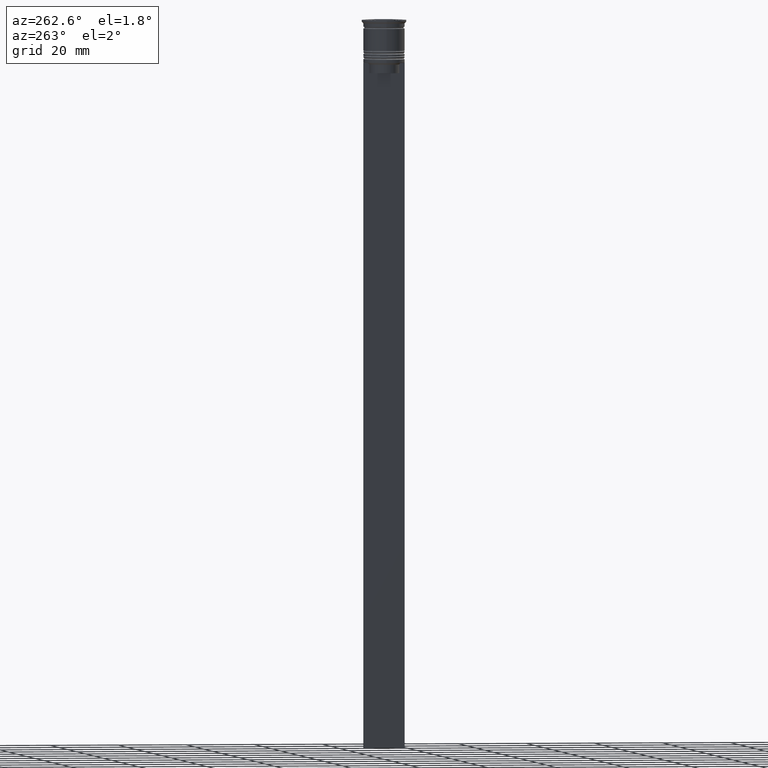
[diagram: clean part render]
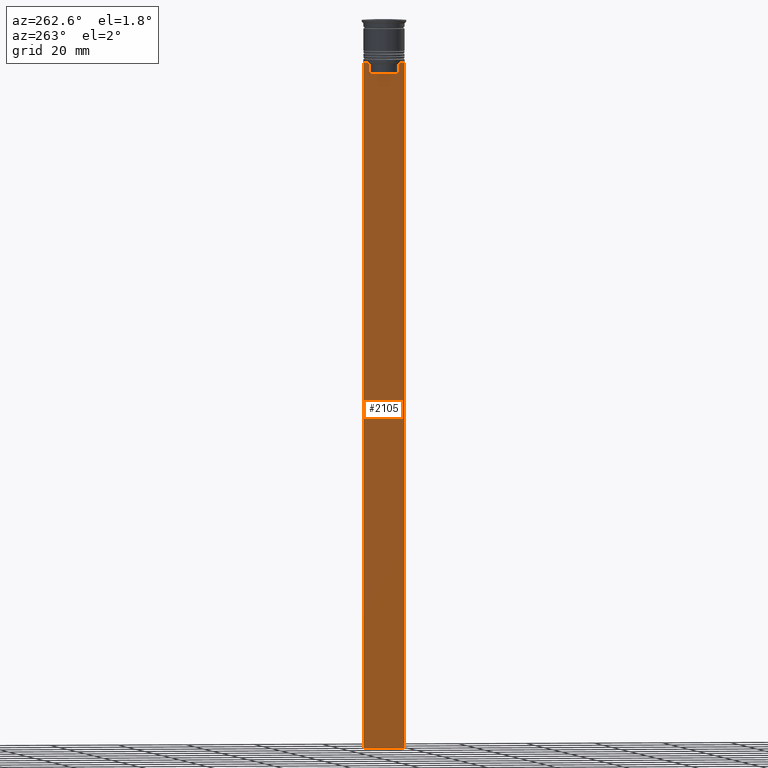
[diagram: same view with one face highlighted and labeled with its STEP entity id]
A machine part, auxiliary view. The second image highlights one B-rep face of the part: STEP entity #2105.
In plain terms, the highlighted planar face has unit normal (-1, 0, 0).
Its self-contained STEP definition (entity closure, byte-faithful):
#6 = ORIENTED_EDGE ( 'NONE', *, *, #308, .F. ) ;
#7 = VECTOR ( 'NONE', #2471, 1000.000000000000000 ) ;
#54 = LINE ( 'NONE', #845, #381 ) ;
#61 = CARTESIAN_POINT ( 'NONE',  ( -0.4999999999999997780, -4.706831372970964544, -12.66671687695981596 ) ) ;
#71 = VERTEX_POINT ( 'NONE', #866 ) ;
#79 = EDGE_CURVE ( 'NONE', #761, #841, #1633, .T. ) ;
#100 = EDGE_CURVE ( 'NONE', #1783, #841, #1753, .T. ) ;
#176 = VECTOR ( 'NONE', #678, 1000.000000000000000 ) ;
#190 = CARTESIAN_POINT ( 'NONE',  ( -0.4999999999999997780, -4.371498598878878816, -13.00000000000000178 ) ) ;
#233 = EDGE_CURVE ( 'NONE', #1739, #1756, #54, .T. ) ;
#252 = DIRECTION ( 'NONE',  ( 0.000000000000000000, 0.000000000000000000, -1.000000000000000000 ) ) ;
#283 = DIRECTION ( 'NONE',  ( 0.000000000000000000, -1.000000000000000000, 0.000000000000000000 ) ) ;
#285 = LINE ( 'NONE', #1643, #772 ) ;
#308 = EDGE_CURVE ( 'NONE', #780, #1309, #1797, .T. ) ;
#340 = VECTOR ( 'NONE', #1341, 1000.000000000000000 ) ;
#375 = CARTESIAN_POINT ( 'NONE',  ( -0.4999999999999997780, -6.000000000000000000, -212.5000000000000284 ) ) ;
#381 = VECTOR ( 'NONE', #283, 1000.000000000000000 ) ;
#383 = DIRECTION ( 'NONE',  ( 0.000000000000000000, 0.000000000000000000, -1.000000000000000000 ) ) ;
#397 = DIRECTION ( 'NONE',  ( -0.000000000000000000, -0.000000000000000000, 1.000000000000000000 ) ) ;
#414 = CARTESIAN_POINT ( 'NONE',  ( -0.4999999999999997780, 4.399999999999999467, -15.50000000000000000 ) ) ;
#457 = VERTEX_POINT ( 'NONE', #1272 ) ;
#467 = LINE ( 'NONE', #414, #2465 ) ;
#517 = PLANE ( 'NONE',  #1239 ) ;
#524 = VERTEX_POINT ( 'NONE', #190 ) ;
#527 = VECTOR ( 'NONE', #383, 1000.000000000000000 ) ;
#533 = CARTESIAN_POINT ( 'NONE',  ( -0.4999999999999997780, 6.000000000000000888, -0.4584054212077061097 ) ) ;
#563 = LINE ( 'NONE', #2306, #527 ) ;
#618 = EDGE_CURVE ( 'NONE', #71, #1629, #467, .T. ) ;
#630 = CARTESIAN_POINT ( 'NONE',  ( -0.4999999999999997780, 4.371498598878878816, 0.000000000000000000 ) ) ;
#678 = DIRECTION ( 'NONE',  ( 0.000000000000000000, -1.000000000000000000, 0.000000000000000000 ) ) ;
#722 = EDGE_CURVE ( 'NONE', #1629, #524, #1367, .T. ) ;
#725 = ORIENTED_EDGE ( 'NONE', *, *, #100, .F. ) ;
#731 = VECTOR ( 'NONE', #252, 1000.000000000000000 ) ;
#751 = ORIENTED_EDGE ( 'NONE', *, *, #1956, .F. ) ;
#761 = VERTEX_POINT ( 'NONE', #1679 ) ;
#762 = EDGE_LOOP ( 'NONE', ( #1648, #2083, #2183, #1076, #725, #1965, #751, #6, #2184, #2309, #2381, #1222 ) ) ;
#763 = EDGE_CURVE ( 'NONE', #1756, #457, #2108, .T. ) ;
#772 = VECTOR ( 'NONE', #882, 1000.000000000000000 ) ;
#780 = VERTEX_POINT ( 'NONE', #1358 ) ;
#841 = VERTEX_POINT ( 'NONE', #1472 ) ;
#845 = CARTESIAN_POINT ( 'NONE',  ( -0.4999999999999997780, -6.000000000000000000, -12.50000000000000000 ) ) ;
#861 = CARTESIAN_POINT ( 'NONE',  ( -0.4999999999999997780, 4.539195634199897356, -12.83338923751318816 ) ) ;
#866 = CARTESIAN_POINT ( 'NONE',  ( -0.4999999999999997780, 4.371498598878878816, -15.50000000000000000 ) ) ;
#881 = DIRECTION ( 'NONE',  ( -1.000000000000000000, 0.000000000000000000, 0.000000000000000000 ) ) ;
#882 = DIRECTION ( 'NONE',  ( 0.000000000000000000, -1.000000000000000000, 0.000000000000000000 ) ) ;
#995 = DIRECTION ( 'NONE',  ( 0.000000000000000000, -1.000000000000000000, 0.000000000000000000 ) ) ;
#1028 = CARTESIAN_POINT ( 'NONE',  ( -0.4999999999999997780, -4.874423042781576676, -12.50000000000000000 ) ) ;
#1052 = VECTOR ( 'NONE', #1981, 1000.000000000000000 ) ;
#1076 = ORIENTED_EDGE ( 'NONE', *, *, #79, .T. ) ;
#1110 = CARTESIAN_POINT ( 'NONE',  ( -0.4999999999999997780, -6.000000000000000000, -212.5000000000000284 ) ) ;
#1162 = VECTOR ( 'NONE', #397, 1000.000000000000000 ) ;
#1185 = CARTESIAN_POINT ( 'NONE',  ( -0.4999999999999997780, -4.371498598878878816, 0.000000000000000000 ) ) ;
#1222 = ORIENTED_EDGE ( 'NONE', *, *, #2433, .F. ) ;
#1239 = AXIS2_PLACEMENT_3D ( 'NONE', #2045, #881, #1696 ) ;
#1266 = CARTESIAN_POINT ( 'NONE',  ( -0.4999999999999997780, 4.706831415367290106, -12.66671683478478982 ) ) ;
#1272 = CARTESIAN_POINT ( 'NONE',  ( -0.4999999999999997780, 4.371498598878878816, -13.00000000000000178 ) ) ;
#1309 = VERTEX_POINT ( 'NONE', #2245 ) ;
#1341 = DIRECTION ( 'NONE',  ( 0.000000000000000000, 1.000000000000000000, 0.000000000000000000 ) ) ;
#1358 = CARTESIAN_POINT ( 'NONE',  ( -0.4999999999999997780, -4.874423042781576676, -12.50000000000000000 ) ) ;
#1367 = LINE ( 'NONE', #1185, #1162 ) ;
#1374 = B_SPLINE_CURVE_WITH_KNOTS ( 'NONE', 3,
 ( #2160, #1960, #61, #1028 ),
 .UNSPECIFIED., .F., .F.,
 ( 4, 4 ),
 ( 0.02089901220910806920, 0.02161421017310284978 ),
 .UNSPECIFIED. ) ;
#1397 = CARTESIAN_POINT ( 'NONE',  ( -0.4999999999999997780, -4.371498598878878816, -15.50000000000000000 ) ) ;
#1472 = CARTESIAN_POINT ( 'NONE',  ( -0.4999999999999997780, 6.000000000000000888, -212.5000000000000284 ) ) ;
#1474 = FACE_OUTER_BOUND ( 'NONE', #762, .T. ) ;
#1489 = CARTESIAN_POINT ( 'NONE',  ( -0.4999999999999997780, 4.874423042781576676, -12.50000000000000000 ) ) ;
#1577 = VERTEX_POINT ( 'NONE', #1611 ) ;
#1611 = CARTESIAN_POINT ( 'NONE',  ( -0.4999999999999997780, -6.000000000000000000, -12.50000000000000000 ) ) ;
#1613 = EDGE_CURVE ( 'NONE', #761, #1739, #285, .T. ) ;
#1618 = CARTESIAN_POINT ( 'NONE',  ( -0.4999999999999997780, -6.000000000000000000, -12.50000000000000000 ) ) ;
#1629 = VERTEX_POINT ( 'NONE', #1397 ) ;
#1633 = LINE ( 'NONE', #533, #7 ) ;
#1643 = CARTESIAN_POINT ( 'NONE',  ( -0.4999999999999997780, -6.000000000000000000, -12.50000000000000000 ) ) ;
#1648 = ORIENTED_EDGE ( 'NONE', *, *, #763, .F. ) ;
#1675 = CARTESIAN_POINT ( 'NONE',  ( -0.4999999999999997780, 5.878775382679627626, -12.50000000000000000 ) ) ;
#1676 = CARTESIAN_POINT ( 'NONE',  ( -0.4999999999999997780, 4.371498598878878816, -13.00000000000000178 ) ) ;
#1679 = CARTESIAN_POINT ( 'NONE',  ( -0.4999999999999997780, 6.000000000000001776, -12.50000000000000000 ) ) ;
#1696 = DIRECTION ( 'NONE',  ( 0.000000000000000000, 0.000000000000000000, 1.000000000000000000 ) ) ;
#1739 = VERTEX_POINT ( 'NONE', #1675 ) ;
#1753 = LINE ( 'NONE', #375, #340 ) ;
#1756 = VERTEX_POINT ( 'NONE', #2231 ) ;
#1778 = CARTESIAN_POINT ( 'NONE',  ( -0.4999999999999997780, -6.000000000000000000, -12.50000000000000000 ) ) ;
#1783 = VERTEX_POINT ( 'NONE', #1110 ) ;
#1797 = LINE ( 'NONE', #1618, #176 ) ;
#1956 = EDGE_CURVE ( 'NONE', #1309, #1577, #2191, .T. ) ;
#1960 = CARTESIAN_POINT ( 'NONE',  ( -0.4999999999999997780, -4.539195586926424220, -12.83338928448044136 ) ) ;
#1965 = ORIENTED_EDGE ( 'NONE', *, *, #2258, .F. ) ;
#1981 = DIRECTION ( 'NONE',  ( 0.000000000000000000, -1.000000000000000000, 0.000000000000000000 ) ) ;
#2045 = CARTESIAN_POINT ( 'NONE',  ( -0.4999999999999997780, -6.000000000000000000, -0.4584054212077061097 ) ) ;
#2083 = ORIENTED_EDGE ( 'NONE', *, *, #233, .F. ) ;
#2105 = ADVANCED_FACE ( 'NONE', ( #1474 ), #517, .T. ) ;
#2108 = B_SPLINE_CURVE_WITH_KNOTS ( 'NONE', 3,
 ( #1489, #1266, #861, #1676 ),
 .UNSPECIFIED., .F., .F.,
 ( 4, 4 ),
 ( 0.008336552452178418518, 0.009045730124312837891 ),
 .UNSPECIFIED. ) ;
#2160 = CARTESIAN_POINT ( 'NONE',  ( -0.4999999999999997780, -4.371498598878878816, -13.00000000000000178 ) ) ;
#2183 = ORIENTED_EDGE ( 'NONE', *, *, #1613, .F. ) ;
#2184 = ORIENTED_EDGE ( 'NONE', *, *, #2398, .F. ) ;
#2191 = LINE ( 'NONE', #1778, #1052 ) ;
#2231 = CARTESIAN_POINT ( 'NONE',  ( -0.4999999999999997780, 4.874423042781576676, -12.50000000000000000 ) ) ;
#2245 = CARTESIAN_POINT ( 'NONE',  ( -0.4999999999999997780, -5.878775382679627626, -12.50000000000000000 ) ) ;
#2258 = EDGE_CURVE ( 'NONE', #1577, #1783, #563, .T. ) ;
#2306 = CARTESIAN_POINT ( 'NONE',  ( -0.4999999999999997780, -6.000000000000000000, -0.4584054212077061097 ) ) ;
#2309 = ORIENTED_EDGE ( 'NONE', *, *, #722, .F. ) ;
#2344 = LINE ( 'NONE', #630, #731 ) ;
#2381 = ORIENTED_EDGE ( 'NONE', *, *, #618, .F. ) ;
#2398 = EDGE_CURVE ( 'NONE', #524, #780, #1374, .T. ) ;
#2433 = EDGE_CURVE ( 'NONE', #457, #71, #2344, .T. ) ;
#2465 = VECTOR ( 'NONE', #995, 1000.000000000000000 ) ;
#2471 = DIRECTION ( 'NONE',  ( 0.000000000000000000, 0.000000000000000000, -1.000000000000000000 ) ) ;